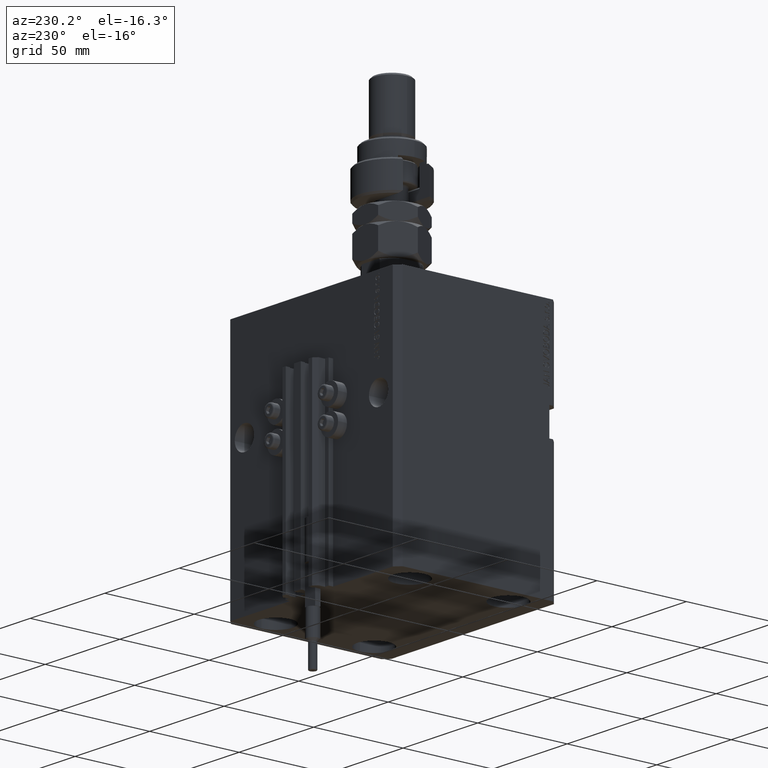
[diagram: clean part render]
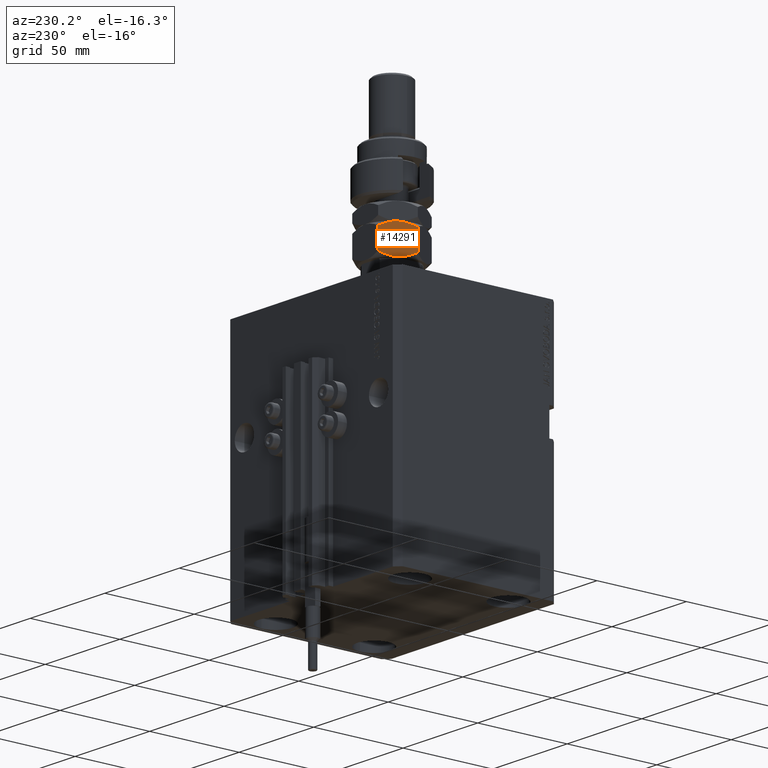
[diagram: same view with one face highlighted and labeled with its STEP entity id]
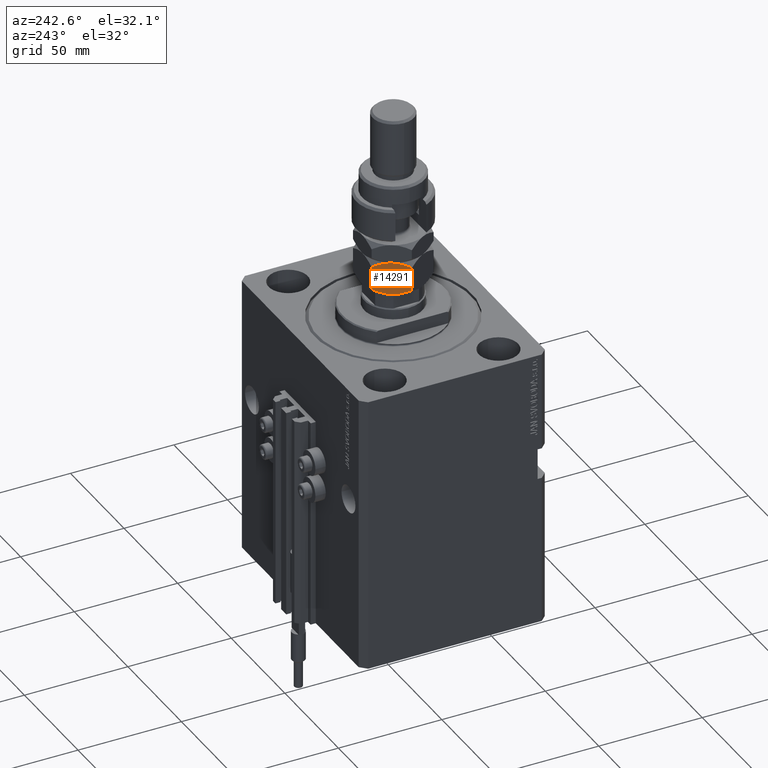
[diagram: same view with one face highlighted and labeled with its STEP entity id]
A machine part, auxiliary view. The second image highlights one B-rep face of the part: STEP entity #14291.
A second angle (auxiliary view) of the same face is appended — the face is thin or edge-on in the first view.
In plain terms, the highlighted planar face has unit normal (0.866, -0.5, 0).
Its self-contained STEP definition (entity closure, byte-faithful):
#858 = CARTESIAN_POINT ( 'NONE',  ( -14.99999999999999645, -7.987590979791842294, 1.984176546662486329 ) ) ;
#992 = CARTESIAN_POINT ( 'NONE',  ( -15.00000000000000000, 8.660254037844394404, 2.320508075688769711 ) ) ;
#2092 = VERTEX_POINT ( 'NONE', #3732 ) ;
#3078 = CARTESIAN_POINT ( 'NONE',  ( -14.99999999999999645, -3.735400403320779272, 15.55737490054933936 ) ) ;
#3108 = CARTESIAN_POINT ( 'NONE',  ( -15.00000000000000000, -3.004629197474317274E-15, 0.000000000000000000 ) ) ;
#3501 = CARTESIAN_POINT ( 'NONE',  ( -15.00000000000000000, 8.660254037844392627, 16.00000000000000000 ) ) ;
#3732 = CARTESIAN_POINT ( 'NONE',  ( -15.00000000000000000, 8.660254037844392627, 13.67949192431123429 ) ) ;
#3872 = CARTESIAN_POINT ( 'NONE',  ( -14.99999999999999822, -5.178726290334378035, 15.14627300035556345 ) ) ;
#5568 = DIRECTION ( 'NONE',  ( 1.000000000000000000, 2.003086131649544964E-16, -0.000000000000000000 ) ) ;
#5596 = CARTESIAN_POINT ( 'NONE',  ( -14.99999999999999645, -7.301344312447434426, 1.670136952686098741 ) ) ;
#6294 = B_SPLINE_CURVE_WITH_KNOTS ( 'NONE', 3,
 ( #41849, #858, #5596, #29177, #37881, #45034, #24698, #40806 ),
 .UNSPECIFIED., .F., .F.,
 ( 4, 2, 2, 4 ),
 ( 0.02387628527307378290, 0.02613482112973649144, 0.02839335698639919997, 0.03291042869972461704 ),
 .UNSPECIFIED. ) ;
#6642 = CARTESIAN_POINT ( 'NONE',  ( -15.00000000000000000, 8.660254037844392627, 13.67949192431123429 ) ) ;
#6777 = CARTESIAN_POINT ( 'NONE',  ( -14.99999999999999645, -3.004629197474316485E-15, 16.00000000000000000 ) ) ;
#7303 = CARTESIAN_POINT ( 'NONE',  ( -14.99999999999999822, -7.987879721624087992, 14.01567908242139282 ) ) ;
#8816 = DIRECTION ( 'NONE',  ( -0.000000000000000000, -0.000000000000000000, -1.000000000000000000 ) ) ;
#8836 = ORIENTED_EDGE ( 'NONE', *, *, #10799, .F. ) ;
#8964 = DIRECTION ( 'NONE',  ( -0.000000000000000000, -0.000000000000000000, -1.000000000000000000 ) ) ;
#10799 = EDGE_CURVE ( 'NONE', #43252, #15172, #6294, .T. ) ;
#11272 = CARTESIAN_POINT ( 'NONE',  ( -14.99999999999999822, -1.516896874073658807, 15.92818277676011007 ) ) ;
#11304 = CARTESIAN_POINT ( 'NONE',  ( -15.00000000000000000, 3.735400403320778828, 0.4426250994506696901 ) ) ;
#11803 = CARTESIAN_POINT ( 'NONE',  ( -15.00000000000000000, -0.7629267201675442589, 15.98531533915807579 ) ) ;
#12396 = ORIENTED_EDGE ( 'NONE', *, *, #25182, .F. ) ;
#13300 = VERTEX_POINT ( 'NONE', #48448 ) ;
#14291 = ADVANCED_FACE ( 'NONE', ( #46033 ), #51053, .F. ) ;
#14334 = CARTESIAN_POINT ( 'NONE',  ( -15.00000000000000000, 7.987590979791845847, 14.01582345333751789 ) ) ;
#14695 = EDGE_CURVE ( 'NONE', #15172, #37990, #48014, .T. ) ;
#14992 = CARTESIAN_POINT ( 'NONE',  ( -14.99999999999999645, -7.300329060372325429, 14.33030584635917393 ) ) ;
#15036 = B_SPLINE_CURVE_WITH_KNOTS ( 'NONE', 3,
 ( #6777, #15788, #11803, #11272, #24006, #35631, #3078, #3872, #43551, #14992, #7303, #48047 ),
 .UNSPECIFIED., .F., .F.,
 ( 4, 2, 2, 2, 2, 4 ),
 ( 0.03291042869972462398, 0.03403908204310903546, 0.03516773538649344694, 0.03742504207326226989, 0.03968234876003109979, 0.04193965544679992274 ),
 .UNSPECIFIED. ) ;
#15172 = VERTEX_POINT ( 'NONE', #32566 ) ;
#15742 = ORIENTED_EDGE ( 'NONE', *, *, #47360, .F. ) ;
#15788 = CARTESIAN_POINT ( 'NONE',  ( -15.00000000000000178, -0.3816858437404726523, 16.00000000000001066 ) ) ;
#15818 = CARTESIAN_POINT ( 'NONE',  ( -14.99999999999999822, 0.7629267201675393739, 0.01468466084192471960 ) ) ;
#16760 = VECTOR ( 'NONE', #8964, 1000.000000000000000 ) ;
#21295 = VERTEX_POINT ( 'NONE', #41864 ) ;
#21689 = ORIENTED_EDGE ( 'NONE', *, *, #14695, .F. ) ;
#22000 = DIRECTION ( 'NONE',  ( -2.003086131649544964E-16, 1.000000000000000000, 0.000000000000000000 ) ) ;
#22814 = CARTESIAN_POINT ( 'NONE',  ( -14.99999999999999645, -3.004629197474316485E-15, 16.00000000000000000 ) ) ;
#23512 = CARTESIAN_POINT ( 'NONE',  ( -14.99999999999999822, 0.3816858437404692661, -3.491469808582225998E-15 ) ) ;
#23638 = LINE ( 'NONE', #3501, #16760 ) ;
#24006 = CARTESIAN_POINT ( 'NONE',  ( -14.99999999999999822, -1.890862710942014857, 15.88574619416684541 ) ) ;
#24698 = CARTESIAN_POINT ( 'NONE',  ( -15.00000000000000355, -1.527574731641586192, -3.659182332138578254E-15 ) ) ;
#25182 = EDGE_CURVE ( 'NONE', #21295, #13300, #15036, .T. ) ;
#26518 = CARTESIAN_POINT ( 'NONE',  ( -14.99999999999999822, 5.891877557735400117, 14.89726549906047381 ) ) ;
#26948 = CARTESIAN_POINT ( 'NONE',  ( -15.00000000000000178, 1.516896874073655255, 0.07181722323989069012 ) ) ;
#27999 = CARTESIAN_POINT ( 'NONE',  ( -15.00000000000000000, 1.890862710942016633, 0.1142538058331583339 ) ) ;
#28146 = EDGE_LOOP ( 'NONE', ( #8836, #47935, #12396, #15742, #44606, #21689 ) ) ;
#28948 = LINE ( 'NONE', #45062, #31349 ) ;
#29177 = CARTESIAN_POINT ( 'NONE',  ( -14.99999999999999112, -5.891877557735397453, 1.102734500939527518 ) ) ;
#30221 = CARTESIAN_POINT ( 'NONE',  ( -15.00000000000000000, 1.527574731641582639, 16.00000000000000711 ) ) ;
#31005 = CARTESIAN_POINT ( 'NONE',  ( -15.00000000000000000, 5.176035048062466615, 15.14719616142215308 ) ) ;
#31349 = VECTOR ( 'NONE', #8816, 1000.000000000000000 ) ;
#31978 = CARTESIAN_POINT ( 'NONE',  ( -14.99999999999999822, 7.300329060372334311, 1.669694153640834955 ) ) ;
#32566 = CARTESIAN_POINT ( 'NONE',  ( -15.00000000000000000, -3.004629197474317274E-15, 0.000000000000000000 ) ) ;
#33775 = EDGE_CURVE ( 'NONE', #2092, #37990, #23638, .T. ) ;
#35133 = CARTESIAN_POINT ( 'NONE',  ( -14.99999999999999645, 7.987879721624096874, 1.984320917578621835 ) ) ;
#35631 = CARTESIAN_POINT ( 'NONE',  ( -14.99999999999999645, -3.004330627448763114, 15.71971113554880972 ) ) ;
#36872 = EDGE_CURVE ( 'NONE', #13300, #43252, #28948, .T. ) ;
#37264 = B_SPLINE_CURVE_WITH_KNOTS ( 'NONE', 3,
 ( #6642, #14334, #50299, #26518, #31005, #47124, #30221, #22814 ),
 .UNSPECIFIED., .F., .F.,
 ( 4, 2, 2, 4 ),
 ( 0.02387628527307378290, 0.02613482112973649490, 0.02839335698639920344, 0.03291042869972462398 ),
 .UNSPECIFIED. ) ;
#37881 = CARTESIAN_POINT ( 'NONE',  ( -14.99999999999999467, -5.176035048062463062, 0.8528038385778453634 ) ) ;
#37990 = VERTEX_POINT ( 'NONE', #992 ) ;
#39093 = CARTESIAN_POINT ( 'NONE',  ( -14.99999999999999822, 5.890999289811424511, 1.102415080315420015 ) ) ;
#40806 = CARTESIAN_POINT ( 'NONE',  ( -15.00000000000000000, -3.004629197474317274E-15, 0.000000000000000000 ) ) ;
#40924 = CARTESIAN_POINT ( 'NONE',  ( -14.99999999999999645, -8.660254037844389075, 2.320508075688762606 ) ) ;
#41821 = CARTESIAN_POINT ( 'NONE',  ( -15.00000000000000000, 8.660254037844392627, 16.00000000000000000 ) ) ;
#41849 = CARTESIAN_POINT ( 'NONE',  ( -14.99999999999999645, -8.660254037844389075, 2.320508075688762606 ) ) ;
#41864 = CARTESIAN_POINT ( 'NONE',  ( -14.99999999999999645, -3.004629197474316485E-15, 16.00000000000000000 ) ) ;
#43252 = VERTEX_POINT ( 'NONE', #40924 ) ;
#43551 = CARTESIAN_POINT ( 'NONE',  ( -14.99999999999999467, -5.890999289811420958, 14.89758491968458820 ) ) ;
#43585 = CARTESIAN_POINT ( 'NONE',  ( -15.00000000000000000, 8.660254037844394404, 2.320508075688769711 ) ) ;
#44606 = ORIENTED_EDGE ( 'NONE', *, *, #33775, .T. ) ;
#45034 = CARTESIAN_POINT ( 'NONE',  ( -14.99999999999999645, -3.008020699068712389, 0.2357602839062925004 ) ) ;
#45062 = CARTESIAN_POINT ( 'NONE',  ( -14.99999999999999645, -8.660254037844389075, 16.00000000000000000 ) ) ;
#46033 = FACE_OUTER_BOUND ( 'NONE', #28146, .T. ) ;
#47124 = CARTESIAN_POINT ( 'NONE',  ( -15.00000000000000000, 3.008020699068715054, 15.76423971609371222 ) ) ;
#47360 = EDGE_CURVE ( 'NONE', #2092, #21295, #37264, .T. ) ;
#47812 = CARTESIAN_POINT ( 'NONE',  ( -15.00000000000000000, 5.178726290334382476, 0.8537269996444443176 ) ) ;
#47935 = ORIENTED_EDGE ( 'NONE', *, *, #36872, .F. ) ;
#48014 = B_SPLINE_CURVE_WITH_KNOTS ( 'NONE', 3,
 ( #3108, #23512, #15818, #26948, #27999, #51254, #11304, #47812, #39093, #31978, #35133, #43585 ),
 .UNSPECIFIED., .F., .F.,
 ( 4, 2, 2, 2, 2, 4 ),
 ( 0.03291042869972461704, 0.03403908204310903546, 0.03516773538649344694, 0.03742504207326227683, 0.03968234876003110673, 0.04193965544679993662 ),
 .UNSPECIFIED. ) ;
#48047 = CARTESIAN_POINT ( 'NONE',  ( -14.99999999999999645, -8.660254037844389075, 13.67949192431124139 ) ) ;
#48448 = CARTESIAN_POINT ( 'NONE',  ( -14.99999999999999645, -8.660254037844389075, 13.67949192431124139 ) ) ;
#49233 = AXIS2_PLACEMENT_3D ( 'NONE', #41821, #5568, #22000 ) ;
#50299 = CARTESIAN_POINT ( 'NONE',  ( -15.00000000000000178, 7.301344312447437979, 14.32986304731390526 ) ) ;
#51053 = PLANE ( 'NONE',  #49233 ) ;
#51254 = CARTESIAN_POINT ( 'NONE',  ( -15.00000000000000000, 3.004330627448767110, 0.2802888644511979388 ) ) ;